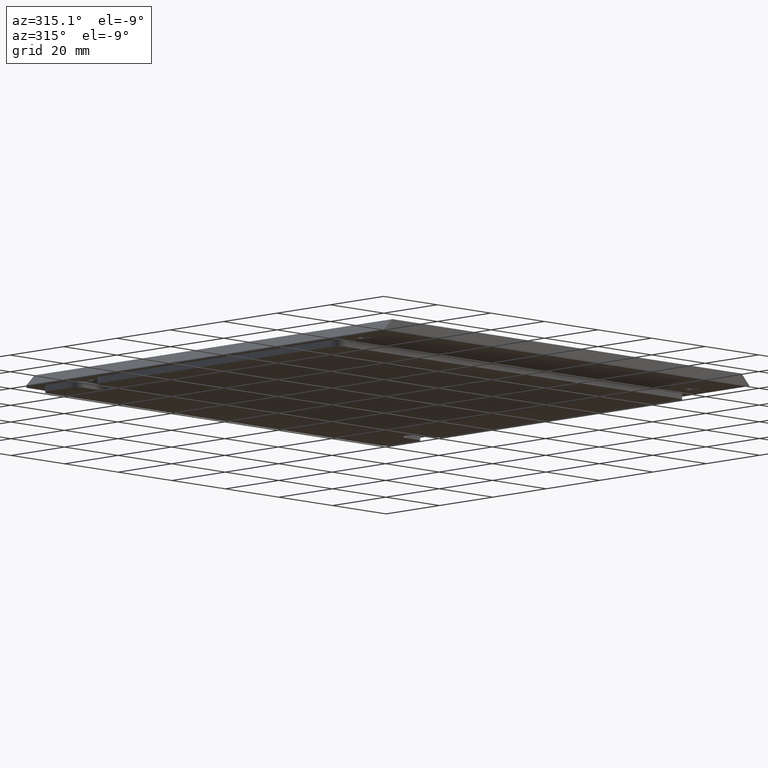
[diagram: clean part render]
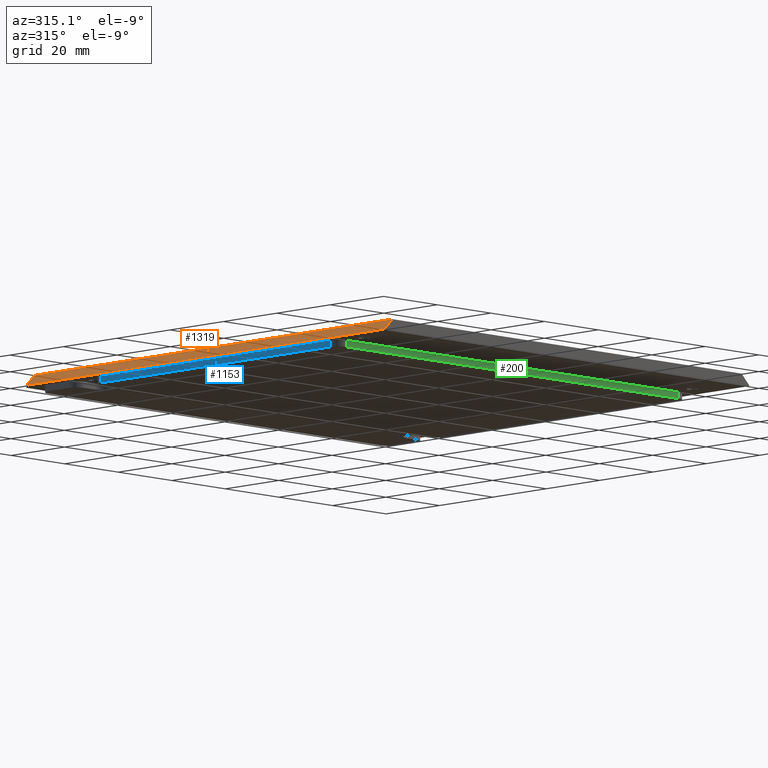
[diagram: same view with three faces highlighted in distinct colors, each labeled with its STEP entity id]
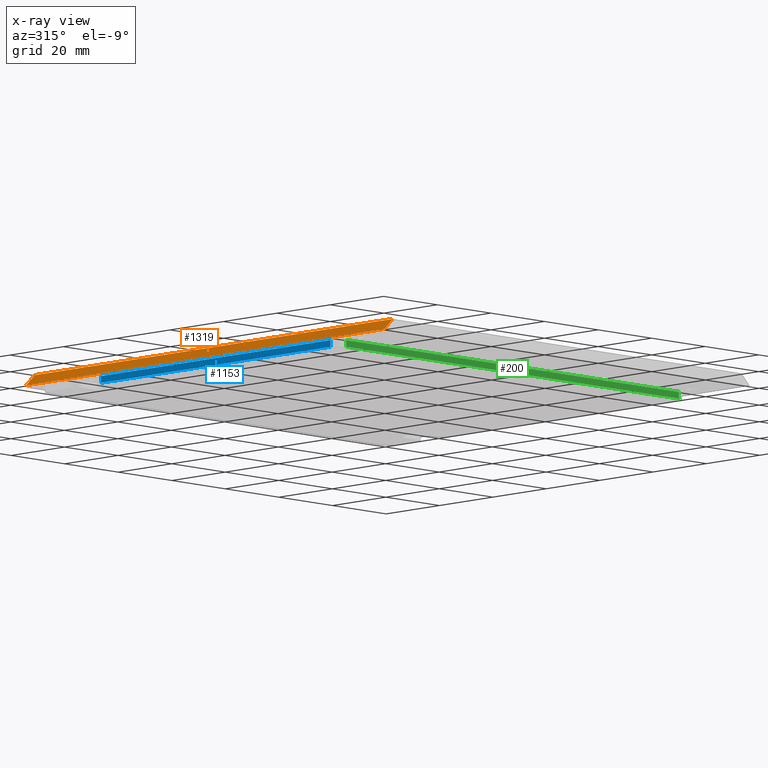
[diagram: x-ray of the same camera — body ghosted, the three highlighted faces saturated]
A machine part, auxiliary view with three faces highlighted in distinct colors.
The next image is the same camera in x-ray (body ghosted, the three faces saturated) — at least one of them is partly hidden behind the body in this view.
Their STEP definitions:

[orange] entity #1319 — the highlighted planar face has unit normal (-0.7071, 0, 0.7071).
#17 = VERTEX_POINT ( 'NONE', #1372 ) ;
#54 = DIRECTION ( 'NONE',  ( 0.0000000000000000000, 1.000000000000000000, 0.0000000000000000000 ) ) ;
#76 = DIRECTION ( 'NONE',  ( -0.7071067811865474600, 0.0000000000000000000, -0.7071067811865474600 ) ) ;
#192 = VECTOR ( 'NONE', #500, 1000.000000000000000 ) ;
#241 = CARTESIAN_POINT ( 'NONE',  ( 0.0000000000000000000, 0.0000000000000000000, -3.000000000000000000 ) ) ;
#259 = FACE_OUTER_BOUND ( 'NONE', #991, .T. ) ;
#261 = CARTESIAN_POINT ( 'NONE',  ( 0.0000000000000000000, 0.0000000000000000000, -3.000000000000000000 ) ) ;
#419 = AXIS2_PLACEMENT_3D ( 'NONE', #1301, #810, #54 ) ;
#420 = VECTOR ( 'NONE', #76, 1000.000000000000100 ) ;
#461 = EDGE_CURVE ( 'NONE', #17, #917, #1179, .T. ) ;
#500 = DIRECTION ( 'NONE',  ( 0.0000000000000000000, -1.000000000000000000, 0.0000000000000000000 ) ) ;
#529 = VECTOR ( 'NONE', #1608, 1000.000000000000100 ) ;
#637 = EDGE_CURVE ( 'NONE', #17, #1451, #902, .T. ) ;
#669 = EDGE_CURVE ( 'NONE', #1451, #756, #1447, .T. ) ;
#674 = ORIENTED_EDGE ( 'NONE', *, *, #669, .F. ) ;
#686 = PLANE ( 'NONE',  #419 ) ;
#756 = VERTEX_POINT ( 'NONE', #1245 ) ;
#762 = LINE ( 'NONE', #1072, #420 ) ;
#810 = DIRECTION ( 'NONE',  ( -0.7071067811865475700, 0.0000000000000000000, 0.7071067811865475700 ) ) ;
#832 = CARTESIAN_POINT ( 'NONE',  ( 3.000000000000002700, 134.0999999999999900, 0.0000000000000000000 ) ) ;
#902 = LINE ( 'NONE', #1111, #529 ) ;
#917 = VERTEX_POINT ( 'NONE', #261 ) ;
#920 = ORIENTED_EDGE ( 'NONE', *, *, #461, .T. ) ;
#991 = EDGE_LOOP ( 'NONE', ( #1592, #674, #1310, #920 ) ) ;
#1072 = CARTESIAN_POINT ( 'NONE',  ( 1.226634733346699300E-015, 0.0000000000000000000, -3.000000000000001300 ) ) ;
#1111 = CARTESIAN_POINT ( 'NONE',  ( 1.500000000000001600, 134.0999999999999900, -1.500000000000001600 ) ) ;
#1117 = DIRECTION ( 'NONE',  ( -0.0000000000000000000, -1.000000000000000000, -0.0000000000000000000 ) ) ;
#1179 = LINE ( 'NONE', #241, #1552 ) ;
#1245 = CARTESIAN_POINT ( 'NONE',  ( 3.000000000000002700, 0.0000000000000000000, 2.168404344971008900E-016 ) ) ;
#1301 = CARTESIAN_POINT ( 'NONE',  ( 3.000000000000002700, 0.0000000000000000000, 0.0000000000000000000 ) ) ;
#1310 = ORIENTED_EDGE ( 'NONE', *, *, #637, .F. ) ;
#1319 = ADVANCED_FACE ( 'NONE', ( #259 ), #686, .T. ) ;
#1372 = CARTESIAN_POINT ( 'NONE',  ( 0.0000000000000000000, 134.0999999999999900, -3.000000000000000000 ) ) ;
#1379 = CARTESIAN_POINT ( 'NONE',  ( 3.000000000000002700, 0.0000000000000000000, 0.0000000000000000000 ) ) ;
#1437 = EDGE_CURVE ( 'NONE', #756, #917, #762, .T. ) ;
#1447 = LINE ( 'NONE', #1379, #192 ) ;
#1451 = VERTEX_POINT ( 'NONE', #832 ) ;
#1552 = VECTOR ( 'NONE', #1117, 1000.000000000000000 ) ;
#1592 = ORIENTED_EDGE ( 'NONE', *, *, #1437, .F. ) ;
#1608 = DIRECTION ( 'NONE',  ( 0.7071067811865474600, 0.0000000000000000000, 0.7071067811865474600 ) ) ;

[blue] entity #1153 — the highlighted planar face has unit normal (1, -0, 0).
#14 = CARTESIAN_POINT ( 'NONE',  ( 3.149999999999999900, 23.34999999999999800, -3.000000000000000000 ) ) ;
#30 = VERTEX_POINT ( 'NONE', #987 ) ;
#50 = EDGE_CURVE ( 'NONE', #1373, #866, #1069, .T. ) ;
#66 = PLANE ( 'NONE',  #1202 ) ;
#108 = DIRECTION ( 'NONE',  ( 0.0000000000000000000, 1.000000000000000000, 0.0000000000000000000 ) ) ;
#150 = DIRECTION ( 'NONE',  ( 0.0000000000000000000, 1.000000000000000000, 0.0000000000000000000 ) ) ;
#151 = VECTOR ( 'NONE', #1316, 1000.000000000000000 ) ;
#174 = LINE ( 'NONE', #14, #772 ) ;
#197 = DIRECTION ( 'NONE',  ( 1.000000000000000000, -0.0000000000000000000, 0.0000000000000000000 ) ) ;
#217 = ORIENTED_EDGE ( 'NONE', *, *, #50, .T. ) ;
#260 = CARTESIAN_POINT ( 'NONE',  ( 3.149999999999999900, 109.3500000000000100, -3.000000000000000000 ) ) ;
#270 = CARTESIAN_POINT ( 'NONE',  ( 3.149999999999999900, 23.34999999999999800, -3.000000000000000000 ) ) ;
#276 = EDGE_CURVE ( 'NONE', #1373, #30, #688, .T. ) ;
#306 = CARTESIAN_POINT ( 'NONE',  ( 3.149999999999999900, 23.34999999999999800, -4.780000000000000200 ) ) ;
#335 = EDGE_LOOP ( 'NONE', ( #431, #708, #424, #217 ) ) ;
#424 = ORIENTED_EDGE ( 'NONE', *, *, #276, .F. ) ;
#431 = ORIENTED_EDGE ( 'NONE', *, *, #932, .T. ) ;
#444 = CARTESIAN_POINT ( 'NONE',  ( 3.149999999999999900, 109.3500000000000100, -4.780000000000000200 ) ) ;
#457 = FACE_OUTER_BOUND ( 'NONE', #335, .T. ) ;
#624 = CARTESIAN_POINT ( 'NONE',  ( 3.149999999999999900, 23.34999999999999800, -4.780000000000000200 ) ) ;
#688 = LINE ( 'NONE', #624, #934 ) ;
#708 = ORIENTED_EDGE ( 'NONE', *, *, #1403, .F. ) ;
#749 = CARTESIAN_POINT ( 'NONE',  ( 3.149999999999999900, 23.34999999999999800, -4.780000000000000200 ) ) ;
#758 = DIRECTION ( 'NONE',  ( -0.0000000000000000000, -0.0000000000000000000, 1.000000000000000000 ) ) ;
#772 = VECTOR ( 'NONE', #150, 1000.000000000000000 ) ;
#866 = VERTEX_POINT ( 'NONE', #270 ) ;
#932 = EDGE_CURVE ( 'NONE', #866, #1527, #174, .T. ) ;
#934 = VECTOR ( 'NONE', #108, 1000.000000000000000 ) ;
#943 = CARTESIAN_POINT ( 'NONE',  ( 3.149999999999999900, 23.34999999999999800, -4.780000000000000200 ) ) ;
#987 = CARTESIAN_POINT ( 'NONE',  ( 3.149999999999999900, 109.3500000000000100, -4.780000000000000200 ) ) ;
#1069 = LINE ( 'NONE', #749, #1109 ) ;
#1070 = DIRECTION ( 'NONE',  ( 0.0000000000000000000, 0.0000000000000000000, -1.000000000000000000 ) ) ;
#1102 = LINE ( 'NONE', #444, #151 ) ;
#1109 = VECTOR ( 'NONE', #758, 1000.000000000000000 ) ;
#1153 = ADVANCED_FACE ( 'NONE', ( #457 ), #66, .F. ) ;
#1202 = AXIS2_PLACEMENT_3D ( 'NONE', #943, #197, #1070 ) ;
#1316 = DIRECTION ( 'NONE',  ( -0.0000000000000000000, -0.0000000000000000000, 1.000000000000000000 ) ) ;
#1373 = VERTEX_POINT ( 'NONE', #306 ) ;
#1403 = EDGE_CURVE ( 'NONE', #30, #1527, #1102, .T. ) ;
#1527 = VERTEX_POINT ( 'NONE', #260 ) ;

[green] entity #200 — the highlighted planar face has unit normal (-0, 1, 0).
#13 = CARTESIAN_POINT ( 'NONE',  ( 130.2499999999999700, 20.35000000000000100, -4.780000000000000200 ) ) ;
#47 = CARTESIAN_POINT ( 'NONE',  ( 6.150000000000003000, 20.34999999999999800, -3.000000000000000000 ) ) ;
#129 = CARTESIAN_POINT ( 'NONE',  ( 6.150000000000003000, 20.34999999999999800, -4.780000000000000200 ) ) ;
#135 = EDGE_CURVE ( 'NONE', #355, #1306, #462, .T. ) ;
#168 = EDGE_CURVE ( 'NONE', #1576, #935, #1591, .T. ) ;
#200 = ADVANCED_FACE ( 'NONE', ( #1304 ), #379, .F. ) ;
#209 = CARTESIAN_POINT ( 'NONE',  ( 6.150000000000003000, 20.34999999999999800, -4.780000000000000200 ) ) ;
#302 = VECTOR ( 'NONE', #1482, 1000.000000000000000 ) ;
#348 = ORIENTED_EDGE ( 'NONE', *, *, #135, .F. ) ;
#355 = VERTEX_POINT ( 'NONE', #209 ) ;
#361 = CARTESIAN_POINT ( 'NONE',  ( 130.2499999999999700, 20.35000000000000100, -4.780000000000000200 ) ) ;
#379 = PLANE ( 'NONE',  #1521 ) ;
#417 = DIRECTION ( 'NONE',  ( -0.0000000000000000000, -0.0000000000000000000, 1.000000000000000000 ) ) ;
#443 = VECTOR ( 'NONE', #417, 1000.000000000000000 ) ;
#462 = LINE ( 'NONE', #129, #443 ) ;
#579 = EDGE_CURVE ( 'NONE', #935, #1306, #1000, .T. ) ;
#706 = LINE ( 'NONE', #361, #1321 ) ;
#720 = EDGE_CURVE ( 'NONE', #1576, #355, #706, .T. ) ;
#795 = DIRECTION ( 'NONE',  ( -0.0000000000000000000, -0.0000000000000000000, 1.000000000000000000 ) ) ;
#799 = CARTESIAN_POINT ( 'NONE',  ( 130.2499999999999700, 20.34999999999998700, -4.780000000000000200 ) ) ;
#887 = ORIENTED_EDGE ( 'NONE', *, *, #720, .F. ) ;
#935 = VERTEX_POINT ( 'NONE', #1515 ) ;
#989 = CARTESIAN_POINT ( 'NONE',  ( 130.2499999999999700, 20.35000000000000100, -3.000000000000000000 ) ) ;
#993 = DIRECTION ( 'NONE',  ( -1.000000000000000000, -2.795686504394532700E-017, 0.0000000000000000000 ) ) ;
#1000 = LINE ( 'NONE', #989, #302 ) ;
#1101 = ORIENTED_EDGE ( 'NONE', *, *, #168, .T. ) ;
#1193 = EDGE_LOOP ( 'NONE', ( #1346, #348, #887, #1101 ) ) ;
#1271 = DIRECTION ( 'NONE',  ( -2.795686504394532700E-017, 1.000000000000000000, 0.0000000000000000000 ) ) ;
#1304 = FACE_OUTER_BOUND ( 'NONE', #1193, .T. ) ;
#1306 = VERTEX_POINT ( 'NONE', #47 ) ;
#1321 = VECTOR ( 'NONE', #993, 1000.000000000000000 ) ;
#1346 = ORIENTED_EDGE ( 'NONE', *, *, #579, .T. ) ;
#1408 = CARTESIAN_POINT ( 'NONE',  ( 130.2499999999999700, 20.34999999999998700, -4.780000000000000200 ) ) ;
#1482 = DIRECTION ( 'NONE',  ( -1.000000000000000000, -2.795686504394532700E-017, 0.0000000000000000000 ) ) ;
#1514 = DIRECTION ( 'NONE',  ( -1.000000000000000000, -2.795686504394532700E-017, 0.0000000000000000000 ) ) ;
#1515 = CARTESIAN_POINT ( 'NONE',  ( 130.2499999999999700, 20.34999999999998700, -3.000000000000000000 ) ) ;
#1521 = AXIS2_PLACEMENT_3D ( 'NONE', #13, #1271, #1514 ) ;
#1556 = VECTOR ( 'NONE', #795, 1000.000000000000000 ) ;
#1576 = VERTEX_POINT ( 'NONE', #1408 ) ;
#1591 = LINE ( 'NONE', #799, #1556 ) ;